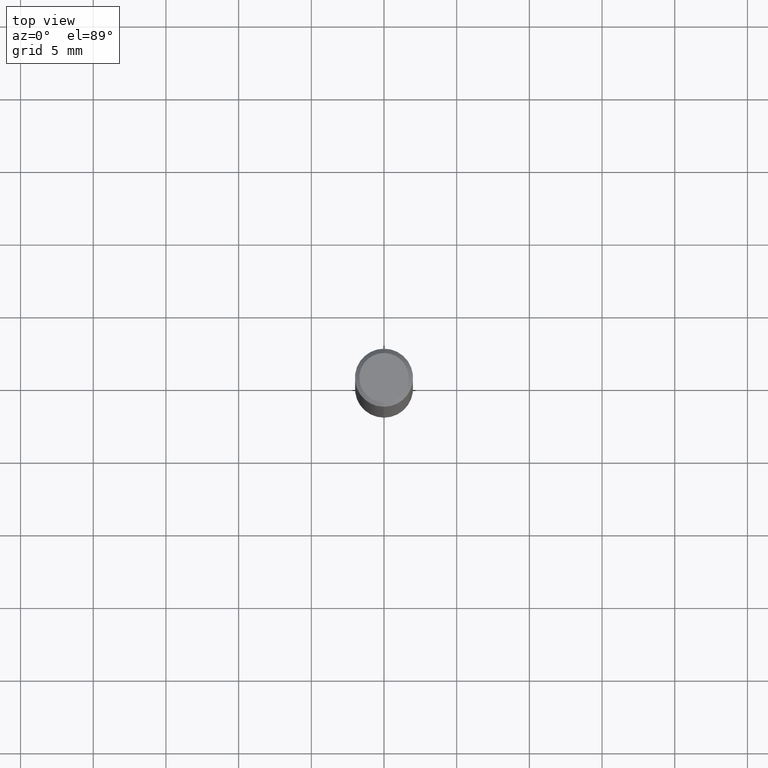
[diagram: clean part render]
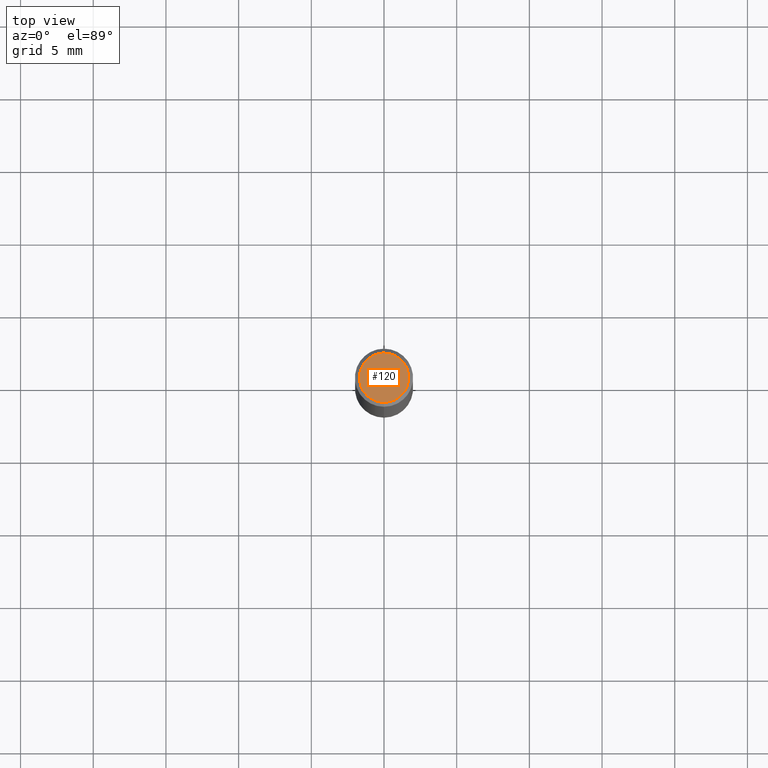
[diagram: same view with one face highlighted and labeled with its STEP entity id]
A machine part, top view. The second image highlights one B-rep face of the part: STEP entity #120.
In plain terms, the highlighted planar face has unit normal (-0, 0, 1).
Its self-contained STEP definition (entity closure, byte-faithful):
#86=VERTEX_POINT('',#211);
#94=EDGE_CURVE('',#126,#86,#221,.T.);
#114=EDGE_CURVE('',#86,#126,#243,.T.);
#120=ADVANCED_FACE('',(#249),#250,.T.);
#126=VERTEX_POINT('',#257);
#211=CARTESIAN_POINT('',(0.0,1.7,0.0));
#221=CIRCLE('',#356,1.7);
#243=CIRCLE('',#386,1.7);
#249=FACE_OUTER_BOUND('',#394,.T.);
#250=PLANE('',#395);
#257=CARTESIAN_POINT('',(2.08183080149804E-016,-1.7,0.0));
#356=AXIS2_PLACEMENT_3D('',#508,#509,#510);
#386=AXIS2_PLACEMENT_3D('',#537,#538,#539);
#394=EDGE_LOOP('',(#547,#548));
#395=AXIS2_PLACEMENT_3D('',#549,#550,#551);
#508=CARTESIAN_POINT('',(0.0,0.0,0.0));
#509=DIRECTION('',(0.0,0.0,-1.0));
#510=DIRECTION('',(0.0,1.0,0.0));
#537=CARTESIAN_POINT('',(0.0,0.0,0.0));
#538=DIRECTION('',(0.0,0.0,-1.0));
#539=DIRECTION('',(0.0,1.0,0.0));
#547=ORIENTED_EDGE('',*,*,#114,.F.);
#548=ORIENTED_EDGE('',*,*,#94,.F.);
#549=CARTESIAN_POINT('',(0.0,0.85,0.0));
#550=DIRECTION('',(-0.0,0.0,1.0));
#551=DIRECTION('',(0.0,-1.0,0.0));